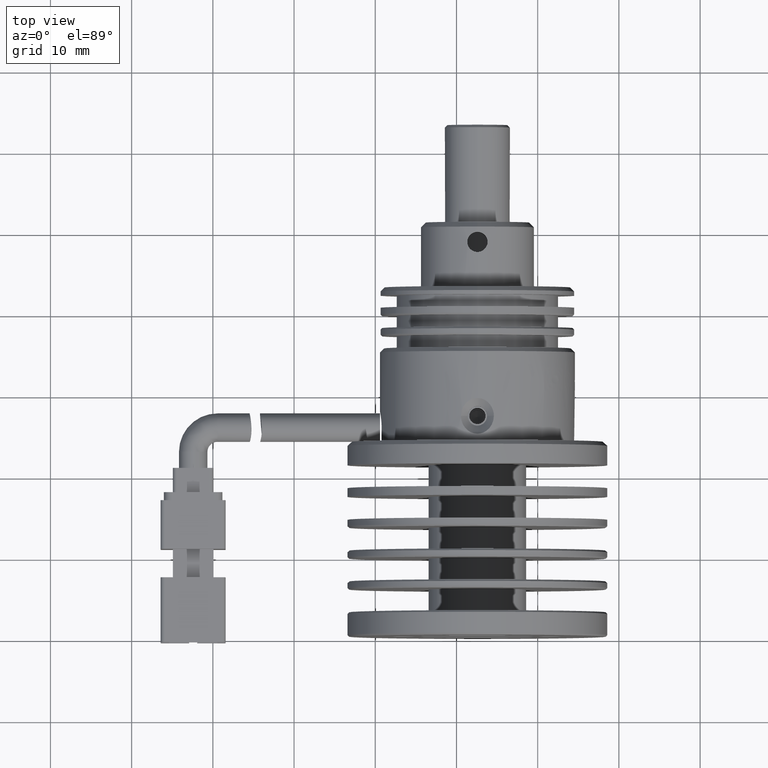
[diagram: clean part render]
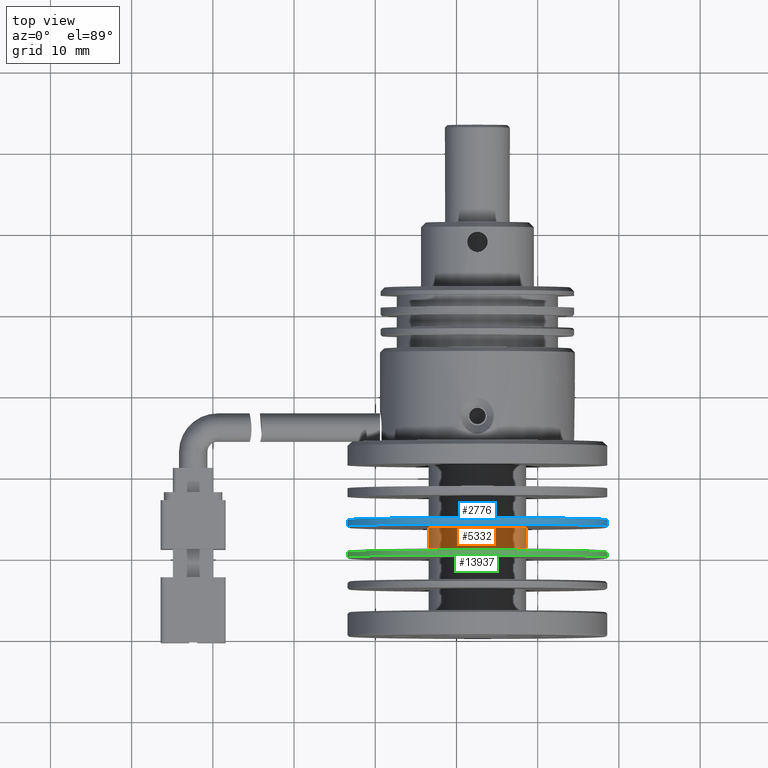
[diagram: same view with three faces highlighted in distinct colors, each labeled with its STEP entity id]
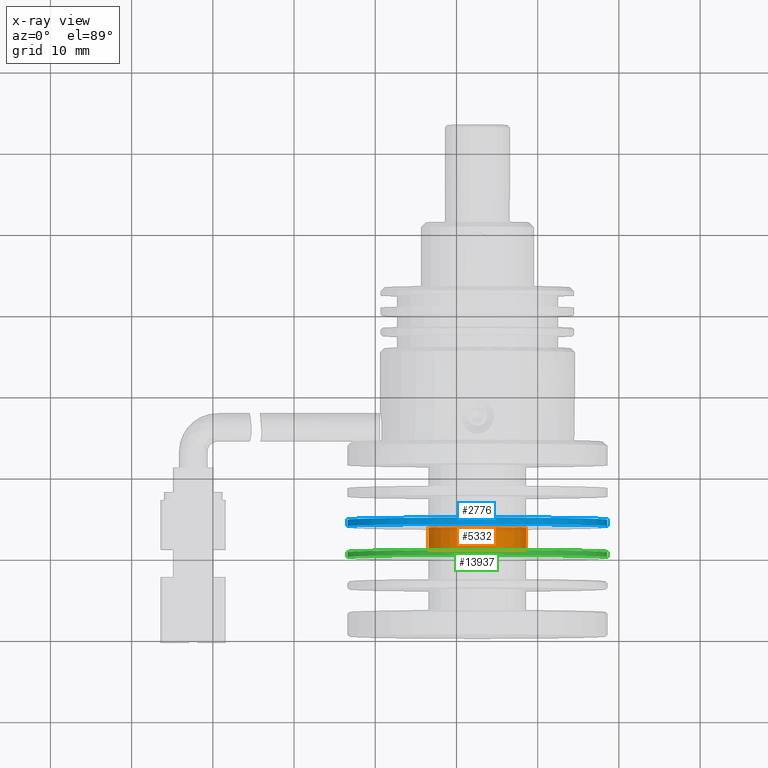
[diagram: x-ray of the same camera — body ghosted, the three highlighted faces saturated]
A machine part, top view with three faces highlighted in distinct colors.
The next image is the same camera in x-ray (body ghosted, the three faces saturated) — at least one of them is partly hidden behind the body in this view.
Their STEP definitions:

[orange] entity #5332 — the highlighted cylindrical surface (partial cylindrical patch) has radius 6 mm, axis along (-0, -1, 0).
#109 = CIRCLE ( 'NONE', #6627, 6.000000000000040000 ) ;
#744 = CARTESIAN_POINT ( 'NONE',  ( 2.574933787635694100, -26.31493551001259900, -9.174035921659418900 ) ) ;
#1182 = FACE_OUTER_BOUND ( 'NONE', #14563, .T. ) ;
#1328 = VERTEX_POINT ( 'NONE', #15792 ) ;
#1765 = EDGE_CURVE ( 'NONE', #1328, #7960, #4911, .T. ) ;
#2108 = DIRECTION ( 'NONE',  ( -1.156482317317871500E-016, -1.000000000000000000, 0.0000000000000000000 ) ) ;
#2256 = DIRECTION ( 'NONE',  ( -1.000000000000000000, 0.0000000000000000000, 0.0000000000000000000 ) ) ;
#2880 = ORIENTED_EDGE ( 'NONE', *, *, #1765, .F. ) ;
#3680 = VERTEX_POINT ( 'NONE', #12091 ) ;
#3696 = DIRECTION ( 'NONE',  ( -1.000000000000000000, 0.0000000000000000000, 0.0000000000000000000 ) ) ;
#4151 = AXIS2_PLACEMENT_3D ( 'NONE', #4250, #14922, #5741 ) ;
#4250 = CARTESIAN_POINT ( 'NONE',  ( 2.574933787635693700, -29.11493551001260000, -9.174035921659418900 ) ) ;
#4716 = CARTESIAN_POINT ( 'NONE',  ( -3.425066212364347600, -39.71493551001260200, -9.174035921659418900 ) ) ;
#4911 = LINE ( 'NONE', #9052, #14980 ) ;
#5332 = ADVANCED_FACE ( 'NONE', ( #1182 ), #7345, .T. ) ;
#5741 = DIRECTION ( 'NONE',  ( -1.000000000000000000, 0.0000000000000000000, 0.0000000000000000000 ) ) ;
#6627 = AXIS2_PLACEMENT_3D ( 'NONE', #744, #11399, #2256 ) ;
#7345 = CYLINDRICAL_SURFACE ( 'NONE', #17517, 6.000000000000040000 ) ;
#7644 = VECTOR ( 'NONE', #15404, 1000.000000000000000 ) ;
#7960 = VERTEX_POINT ( 'NONE', #10967 ) ;
#8337 = CIRCLE ( 'NONE', #4151, 6.000000000000040000 ) ;
#8985 = DIRECTION ( 'NONE',  ( -1.156482317317871500E-016, -1.000000000000000000, 0.0000000000000000000 ) ) ;
#9052 = CARTESIAN_POINT ( 'NONE',  ( 8.574933787635732300, -39.71493551001260200, -9.174035921659418900 ) ) ;
#10967 = CARTESIAN_POINT ( 'NONE',  ( 8.574933787635734100, -29.11493551001260000, -9.174035921659418900 ) ) ;
#11399 = DIRECTION ( 'NONE',  ( 1.156482317317871500E-016, 1.000000000000000000, -0.0000000000000000000 ) ) ;
#12091 = CARTESIAN_POINT ( 'NONE',  ( -3.425066212364345800, -26.31493551001259900, -9.174035921659418900 ) ) ;
#12521 = ORIENTED_EDGE ( 'NONE', *, *, #14498, .F. ) ;
#13143 = ORIENTED_EDGE ( 'NONE', *, *, #19846, .T. ) ;
#14498 = EDGE_CURVE ( 'NONE', #3680, #1328, #109, .T. ) ;
#14563 = EDGE_LOOP ( 'NONE', ( #2880, #12521, #19050, #13143 ) ) ;
#14607 = CARTESIAN_POINT ( 'NONE',  ( -3.425066212364346300, -29.11493551001260000, -9.174035921659418900 ) ) ;
#14922 = DIRECTION ( 'NONE',  ( 1.156482317317871500E-016, 1.000000000000000000, -0.0000000000000000000 ) ) ;
#14980 = VECTOR ( 'NONE', #8985, 1000.000000000000000 ) ;
#15404 = DIRECTION ( 'NONE',  ( -1.156482317317871500E-016, -1.000000000000000000, 0.0000000000000000000 ) ) ;
#15792 = CARTESIAN_POINT ( 'NONE',  ( 8.574933787635734100, -26.31493551001259900, -9.174035921659418900 ) ) ;
#17517 = AXIS2_PLACEMENT_3D ( 'NONE', #18956, #2108, #3696 ) ;
#17597 = VERTEX_POINT ( 'NONE', #14607 ) ;
#17794 = EDGE_CURVE ( 'NONE', #3680, #17597, #19494, .T. ) ;
#18956 = CARTESIAN_POINT ( 'NONE',  ( 2.574933787635692400, -39.71493551001260200, -9.174035921659418900 ) ) ;
#19050 = ORIENTED_EDGE ( 'NONE', *, *, #17794, .T. ) ;
#19494 = LINE ( 'NONE', #4716, #7644 ) ;
#19846 = EDGE_CURVE ( 'NONE', #17597, #7960, #8337, .T. ) ;

[blue] entity #2776 — the highlighted cylindrical surface (partial cylindrical patch) has radius 16 mm, axis along (-0, -1, 0).
#859 = CARTESIAN_POINT ( 'NONE',  ( -13.42506621236430900, -25.31493551001259900, -9.174035921659418900 ) ) ;
#2776 = ADVANCED_FACE ( 'NONE', ( #8001 ), #18374, .T. ) ;
#3470 = DIRECTION ( 'NONE',  ( -1.000000000000000000, 0.0000000000000000000, 0.0000000000000000000 ) ) ;
#4188 = ORIENTED_EDGE ( 'NONE', *, *, #6005, .T. ) ;
#4277 = EDGE_LOOP ( 'NONE', ( #4463, #5729, #17714, #4188, #16093 ) ) ;
#4286 = EDGE_CURVE ( 'NONE', #17603, #11574, #8189, .T. ) ;
#4463 = ORIENTED_EDGE ( 'NONE', *, *, #11461, .F. ) ;
#4961 = DIRECTION ( 'NONE',  ( 0.0000000000000000000, 1.000000000000000000, -0.0000000000000000000 ) ) ;
#5085 = DIRECTION ( 'NONE',  ( 0.0000000000000000000, 1.000000000000000000, -0.0000000000000000000 ) ) ;
#5388 = CARTESIAN_POINT ( 'NONE',  ( -13.42506621236430900, -10.71493551001260000, -9.174035921659418900 ) ) ;
#5516 = AXIS2_PLACEMENT_3D ( 'NONE', #17034, #7824, #18609 ) ;
#5729 = ORIENTED_EDGE ( 'NONE', *, *, #19552, .F. ) ;
#5760 = LINE ( 'NONE', #5388, #9822 ) ;
#5780 = AXIS2_PLACEMENT_3D ( 'NONE', #14123, #4961, #15675 ) ;
#6005 = EDGE_CURVE ( 'NONE', #16136, #17603, #10205, .T. ) ;
#6364 = VECTOR ( 'NONE', #17251, 1000.000000000000000 ) ;
#7203 = AXIS2_PLACEMENT_3D ( 'NONE', #14265, #5085, #15804 ) ;
#7824 = DIRECTION ( 'NONE',  ( 0.0000000000000000000, 1.000000000000000000, -0.0000000000000000000 ) ) ;
#8001 = FACE_OUTER_BOUND ( 'NONE', #4277, .T. ) ;
#8189 = CIRCLE ( 'NONE', #5780, 16.00000000000000000 ) ;
#9295 = EDGE_CURVE ( 'NONE', #17522, #16136, #5760, .T. ) ;
#9822 = VECTOR ( 'NONE', #14567, 1000.000000000000000 ) ;
#9898 = CARTESIAN_POINT ( 'NONE',  ( 18.57493378763569300, -26.11493551001265000, -9.174035921659420700 ) ) ;
#10205 = CIRCLE ( 'NONE', #7203, 16.00000000000000000 ) ;
#10526 = VERTEX_POINT ( 'NONE', #19360 ) ;
#11461 = EDGE_CURVE ( 'NONE', #10526, #11574, #15012, .T. ) ;
#11574 = VERTEX_POINT ( 'NONE', #9898 ) ;
#11807 = AXIS2_PLACEMENT_3D ( 'NONE', #12609, #12539, #3470 ) ;
#12539 = DIRECTION ( 'NONE',  ( -0.0000000000000000000, -1.000000000000000000, 0.0000000000000000000 ) ) ;
#12609 = CARTESIAN_POINT ( 'NONE',  ( 2.574933787635692400, -10.71493551001260000, -9.174035921659418900 ) ) ;
#14123 = CARTESIAN_POINT ( 'NONE',  ( 2.574933787635692400, -26.11493551001265000, -9.174035921659418900 ) ) ;
#14136 = CARTESIAN_POINT ( 'NONE',  ( 18.57493378763569300, -10.71493551001260000, -9.174035921659420700 ) ) ;
#14265 = CARTESIAN_POINT ( 'NONE',  ( 2.574933787635692400, -26.11493551001265000, -9.174035921659418900 ) ) ;
#14567 = DIRECTION ( 'NONE',  ( -0.0000000000000000000, -1.000000000000000000, 0.0000000000000000000 ) ) ;
#14611 = CIRCLE ( 'NONE', #5516, 16.00000000000000000 ) ;
#15012 = LINE ( 'NONE', #14136, #6364 ) ;
#15675 = DIRECTION ( 'NONE',  ( -1.000000000000000000, 0.0000000000000000000, 0.0000000000000000000 ) ) ;
#15804 = DIRECTION ( 'NONE',  ( -1.000000000000000000, 0.0000000000000000000, 0.0000000000000000000 ) ) ;
#16093 = ORIENTED_EDGE ( 'NONE', *, *, #4286, .T. ) ;
#16136 = VERTEX_POINT ( 'NONE', #19172 ) ;
#17034 = CARTESIAN_POINT ( 'NONE',  ( 2.574933787635692400, -25.31493551001259900, -9.174035921659418900 ) ) ;
#17251 = DIRECTION ( 'NONE',  ( -0.0000000000000000000, -1.000000000000000000, 0.0000000000000000000 ) ) ;
#17522 = VERTEX_POINT ( 'NONE', #859 ) ;
#17603 = VERTEX_POINT ( 'NONE', #19381 ) ;
#17714 = ORIENTED_EDGE ( 'NONE', *, *, #9295, .T. ) ;
#18374 = CYLINDRICAL_SURFACE ( 'NONE', #11807, 16.00000000000000000 ) ;
#18609 = DIRECTION ( 'NONE',  ( -1.000000000000000000, 0.0000000000000000000, 0.0000000000000000000 ) ) ;
#19172 = CARTESIAN_POINT ( 'NONE',  ( -13.42506621236430900, -26.11493551001265000, -9.174035921659418900 ) ) ;
#19360 = CARTESIAN_POINT ( 'NONE',  ( 18.57493378763569300, -25.31493551001259900, -9.174035921659420700 ) ) ;
#19381 = CARTESIAN_POINT ( 'NONE',  ( 2.574933787635692400, -26.11493551001265000, 6.825964078340581100 ) ) ;
#19552 = EDGE_CURVE ( 'NONE', #17522, #10526, #14611, .T. ) ;

[green] entity #13937 — the highlighted cylindrical surface (partial cylindrical patch) has radius 16 mm, axis along (-0, -1, 0).
#108 = ORIENTED_EDGE ( 'NONE', *, *, #4661, .T. ) ;
#845 = VERTEX_POINT ( 'NONE', #14291 ) ;
#1176 = DIRECTION ( 'NONE',  ( -0.0000000000000000000, -1.000000000000000000, 0.0000000000000000000 ) ) ;
#2611 = ORIENTED_EDGE ( 'NONE', *, *, #7619, .T. ) ;
#3238 = CIRCLE ( 'NONE', #14989, 16.00000000000000000 ) ;
#4050 = EDGE_LOOP ( 'NONE', ( #7984, #9329, #18112, #108, #2611 ) ) ;
#4058 = CARTESIAN_POINT ( 'NONE',  ( 2.574933787635692400, -29.31493551001258200, -9.174035921659418900 ) ) ;
#4195 = VERTEX_POINT ( 'NONE', #10321 ) ;
#4661 = EDGE_CURVE ( 'NONE', #19317, #845, #19268, .T. ) ;
#5553 = DIRECTION ( 'NONE',  ( -1.000000000000000000, 0.0000000000000000000, 0.0000000000000000000 ) ) ;
#6055 = VERTEX_POINT ( 'NONE', #12763 ) ;
#6068 = DIRECTION ( 'NONE',  ( -0.0000000000000000000, -1.000000000000000000, 0.0000000000000000000 ) ) ;
#6737 = CARTESIAN_POINT ( 'NONE',  ( 2.574933787635692400, -29.91493551001262200, -9.174035921659418900 ) ) ;
#6788 = FACE_OUTER_BOUND ( 'NONE', #4050, .T. ) ;
#7110 = EDGE_CURVE ( 'NONE', #15898, #6055, #9956, .T. ) ;
#7619 = EDGE_CURVE ( 'NONE', #845, #4195, #3238, .T. ) ;
#7984 = ORIENTED_EDGE ( 'NONE', *, *, #19327, .F. ) ;
#8289 = DIRECTION ( 'NONE',  ( -1.000000000000000000, 0.0000000000000000000, 0.0000000000000000000 ) ) ;
#8471 = CYLINDRICAL_SURFACE ( 'NONE', #14335, 16.00000000000000000 ) ;
#8487 = DIRECTION ( 'NONE',  ( 0.0000000000000000000, 1.000000000000000000, -0.0000000000000000000 ) ) ;
#8691 = CARTESIAN_POINT ( 'NONE',  ( -13.42506621236430900, -29.31493551001258200, -9.174035921659418900 ) ) ;
#9048 = CARTESIAN_POINT ( 'NONE',  ( 2.574933787635694600, -29.31493551001258200, 6.825964078340581100 ) ) ;
#9329 = ORIENTED_EDGE ( 'NONE', *, *, #7110, .F. ) ;
#9956 = CIRCLE ( 'NONE', #19277, 16.00000000000000000 ) ;
#10321 = CARTESIAN_POINT ( 'NONE',  ( 18.57493378763569300, -29.91493551001262200, -9.174035921659418900 ) ) ;
#10540 = LINE ( 'NONE', #11854, #14634 ) ;
#11854 = CARTESIAN_POINT ( 'NONE',  ( 18.57493378763569300, -10.71493551001260000, -9.174035921659420700 ) ) ;
#12763 = CARTESIAN_POINT ( 'NONE',  ( 18.57493378763569300, -29.31493551001258200, -9.174035921659420700 ) ) ;
#13913 = CIRCLE ( 'NONE', #14913, 16.00000000000000000 ) ;
#13937 = ADVANCED_FACE ( 'NONE', ( #6788 ), #8471, .T. ) ;
#14291 = CARTESIAN_POINT ( 'NONE',  ( -13.42506621236430900, -29.91493551001262200, -9.174035921659420700 ) ) ;
#14335 = AXIS2_PLACEMENT_3D ( 'NONE', #18930, #15787, #17425 ) ;
#14634 = VECTOR ( 'NONE', #1176, 1000.000000000000000 ) ;
#14639 = VECTOR ( 'NONE', #6068, 1000.000000000000000 ) ;
#14747 = DIRECTION ( 'NONE',  ( 0.0000000000000000000, 1.000000000000000000, -0.0000000000000000000 ) ) ;
#14913 = AXIS2_PLACEMENT_3D ( 'NONE', #4058, #14747, #5553 ) ;
#14989 = AXIS2_PLACEMENT_3D ( 'NONE', #6737, #17515, #8289 ) ;
#15787 = DIRECTION ( 'NONE',  ( -0.0000000000000000000, -1.000000000000000000, 0.0000000000000000000 ) ) ;
#15898 = VERTEX_POINT ( 'NONE', #9048 ) ;
#16825 = CARTESIAN_POINT ( 'NONE',  ( -13.42506621236430900, -10.71493551001260000, -9.174035921659418900 ) ) ;
#17425 = DIRECTION ( 'NONE',  ( -1.000000000000000000, 0.0000000000000000000, 0.0000000000000000000 ) ) ;
#17515 = DIRECTION ( 'NONE',  ( 0.0000000000000000000, 1.000000000000000000, -0.0000000000000000000 ) ) ;
#17723 = CARTESIAN_POINT ( 'NONE',  ( 2.574933787635692400, -29.31493551001258200, -9.174035921659418900 ) ) ;
#18112 = ORIENTED_EDGE ( 'NONE', *, *, #19258, .F. ) ;
#18930 = CARTESIAN_POINT ( 'NONE',  ( 2.574933787635692400, -10.71493551001260000, -9.174035921659418900 ) ) ;
#19258 = EDGE_CURVE ( 'NONE', #19317, #15898, #13913, .T. ) ;
#19268 = LINE ( 'NONE', #16825, #14639 ) ;
#19277 = AXIS2_PLACEMENT_3D ( 'NONE', #17723, #8487, #19295 ) ;
#19295 = DIRECTION ( 'NONE',  ( -1.000000000000000000, 0.0000000000000000000, 0.0000000000000000000 ) ) ;
#19317 = VERTEX_POINT ( 'NONE', #8691 ) ;
#19327 = EDGE_CURVE ( 'NONE', #6055, #4195, #10540, .T. ) ;